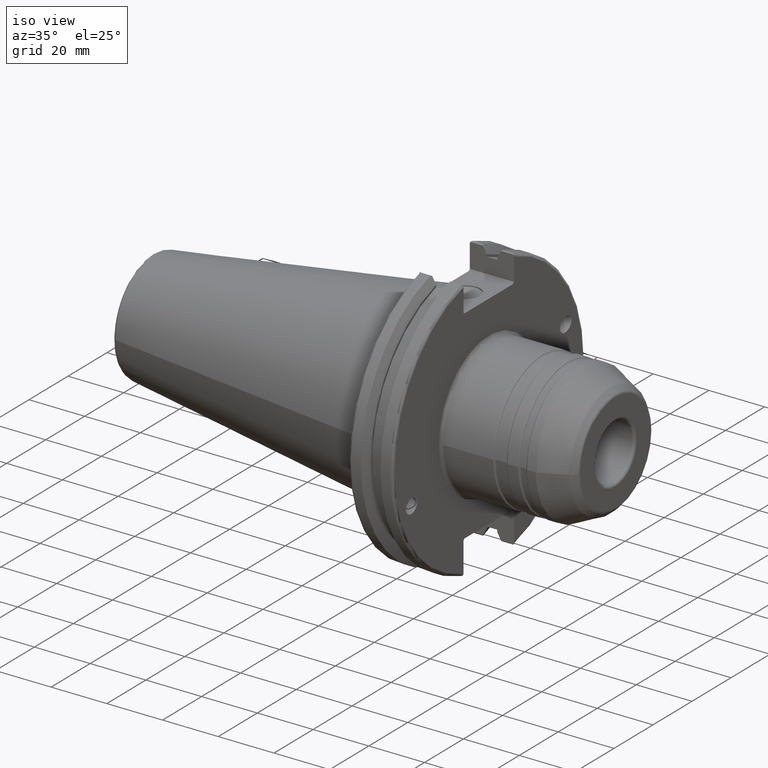
[diagram: clean part render]
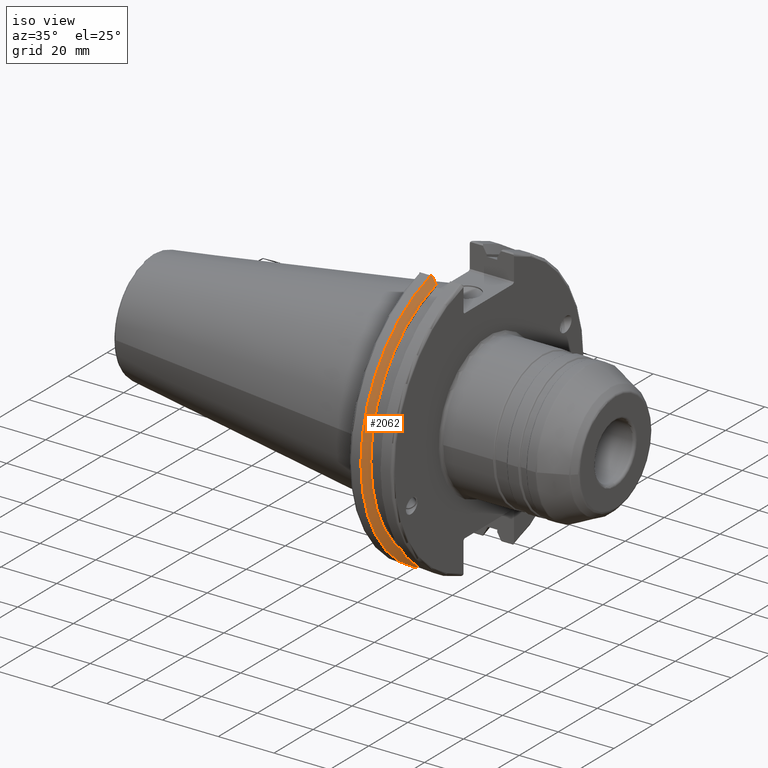
[diagram: same view with one face highlighted and labeled with its STEP entity id]
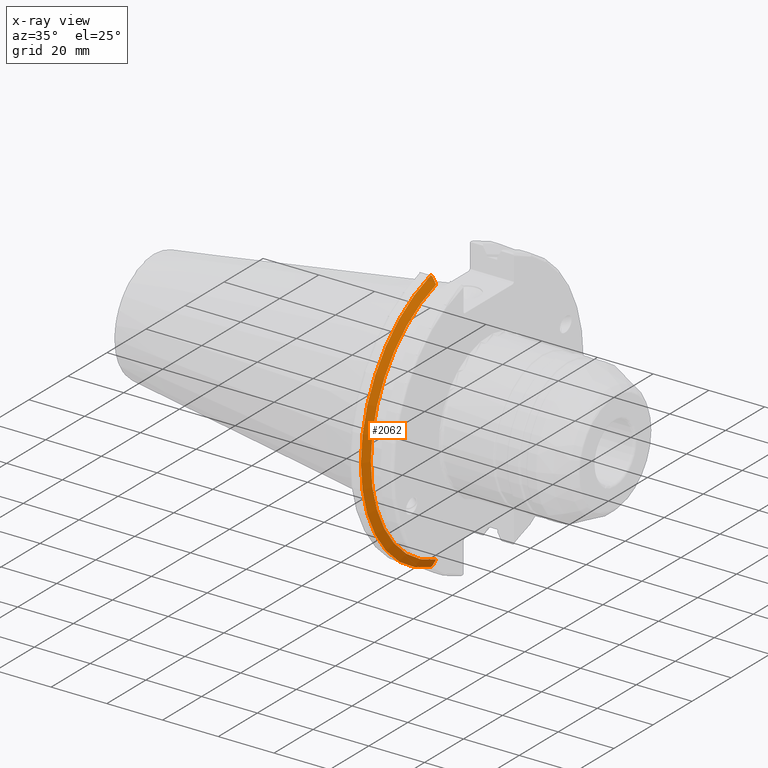
[diagram: x-ray of the same camera — body ghosted, the highlighted face saturated]
A machine part, iso view. The second image highlights one B-rep face of the part: STEP entity #2062.
The next image is the same camera in x-ray: the body ghosted, the highlighted face saturated — about 0% of this face is hidden behind the body in this view.
In plain terms, the highlighted conical surface has half-angle 60 deg.
Its self-contained STEP definition (entity closure, byte-faithful):
#18=(
BOUNDED_CURVE()
B_SPLINE_CURVE(2,(#3693,#3694,#3695),.UNSPECIFIED.,.F.,.F.)
B_SPLINE_CURVE_WITH_KNOTS((3,3),(0.,0.275823910674601),.UNSPECIFIED.)
CURVE()
GEOMETRIC_REPRESENTATION_ITEM()
RATIONAL_B_SPLINE_CURVE((1.,1.00038235573593,1.00012873636487))
REPRESENTATION_ITEM('')
);
#21=(
BOUNDED_CURVE()
B_SPLINE_CURVE(2,(#3721,#3722,#3723),.UNSPECIFIED.,.F.,.F.)
B_SPLINE_CURVE_WITH_KNOTS((3,3),(0.0558332664507492,0.331657177124507),
 .UNSPECIFIED.)
CURVE()
GEOMETRIC_REPRESENTATION_ITEM()
RATIONAL_B_SPLINE_CURVE((1.00012873636807,1.00038235574544,1.))
REPRESENTATION_ITEM('')
);
#22=(
BOUNDED_CURVE()
B_SPLINE_CURVE(2,(#3756,#3757,#3758),.UNSPECIFIED.,.F.,.F.)
B_SPLINE_CURVE_WITH_KNOTS((3,3),(0.,0.0648240472897372),.UNSPECIFIED.)
CURVE()
GEOMETRIC_REPRESENTATION_ITEM()
RATIONAL_B_SPLINE_CURVE((1.,1.00011477674836,1.00019140645948))
REPRESENTATION_ITEM('')
);
#23=(
BOUNDED_CURVE()
B_SPLINE_CURVE(2,(#3764,#3765,#3766),.UNSPECIFIED.,.F.,.F.)
B_SPLINE_CURVE_WITH_KNOTS((3,3),(0.325260944932348,0.390084992222201),
 .UNSPECIFIED.)
CURVE()
GEOMETRIC_REPRESENTATION_ITEM()
RATIONAL_B_SPLINE_CURVE((1.00019140645916,1.00011477674817,1.))
REPRESENTATION_ITEM('')
);
#68=CONICAL_SURFACE('',#2369,47.8172386482472,1.0471975511966);
#458=FACE_OUTER_BOUND('',#576,.T.);
#576=EDGE_LOOP('',(#1923,#1924,#1925,#1926,#1927,#1928));
#720=CIRCLE('',#2311,49.2125);
#747=CIRCLE('',#2370,46.4219772964944);
#932=VERTEX_POINT('',#3690);
#933=VERTEX_POINT('',#3692);
#942=VERTEX_POINT('',#3718);
#943=VERTEX_POINT('',#3720);
#947=VERTEX_POINT('',#3754);
#948=VERTEX_POINT('',#3760);
#1219=EDGE_CURVE('',#933,#932,#18,.T.);
#1230=EDGE_CURVE('',#943,#942,#21,.T.);
#1238=EDGE_CURVE('',#947,#932,#22,.T.);
#1240=EDGE_CURVE('',#947,#948,#720,.T.);
#1241=EDGE_CURVE('',#943,#948,#23,.T.);
#1299=EDGE_CURVE('',#933,#942,#747,.T.);
#1923=ORIENTED_EDGE('',*,*,#1241,.F.);
#1924=ORIENTED_EDGE('',*,*,#1230,.T.);
#1925=ORIENTED_EDGE('',*,*,#1299,.F.);
#1926=ORIENTED_EDGE('',*,*,#1219,.T.);
#1927=ORIENTED_EDGE('',*,*,#1238,.F.);
#1928=ORIENTED_EDGE('',*,*,#1240,.T.);
#2062=ADVANCED_FACE('',(#458),#68,.T.);
#2311=AXIS2_PLACEMENT_3D('',#3762,#2903,#2904);
#2369=AXIS2_PLACEMENT_3D('',#3919,#3040,#3041);
#2370=AXIS2_PLACEMENT_3D('',#3920,#3042,#3043);
#2903=DIRECTION('center_axis',(1.,0.,0.));
#2904=DIRECTION('ref_axis',(0.,0.,-1.));
#3040=DIRECTION('center_axis',(-1.,0.,0.));
#3041=DIRECTION('ref_axis',(0.,-1.,-1.22464679914735E-16));
#3042=DIRECTION('center_axis',(1.,0.,0.));
#3043=DIRECTION('ref_axis',(0.,0.,-1.));
#3690=CARTESIAN_POINT('',(7.88638960562424,-12.95,46.9780755322918));
#3692=CARTESIAN_POINT('',(9.2191,-12.95,44.5791147973604));
#3693=CARTESIAN_POINT('Ctrl Pts',(9.2191,-12.95,44.5791147973604));
#3694=CARTESIAN_POINT('Ctrl Pts',(8.57020449055857,-12.95,45.7494966802148));
#3695=CARTESIAN_POINT('Ctrl Pts',(7.88638960562424,-12.95,46.9780755322918));
#3718=CARTESIAN_POINT('',(9.2191,-12.95,-44.5791147973604));
#3720=CARTESIAN_POINT('',(7.88638960562425,-12.95,-46.9780755322918));
#3721=CARTESIAN_POINT('Ctrl Pts',(7.88638960562425,-12.95,-46.9780755322918));
#3722=CARTESIAN_POINT('Ctrl Pts',(8.57020449054166,-12.95,-45.7494966802452));
#3723=CARTESIAN_POINT('Ctrl Pts',(9.2191,-12.95,-44.5791147973604));
#3754=CARTESIAN_POINT('',(7.60799096595127,-13.4317035994433,47.3440544806494));
#3756=CARTESIAN_POINT('Ctrl Pts',(7.60799096595126,-13.4317035994433,47.3440544806494));
#3757=CARTESIAN_POINT('Ctrl Pts',(7.7482689666382,-13.1896660169966,47.1601640966265));
#3758=CARTESIAN_POINT('Ctrl Pts',(7.88638960562424,-12.95,46.9780755322918));
#3760=CARTESIAN_POINT('',(7.60799096595127,-13.4317035994433,-47.3440544806494));
#3762=CARTESIAN_POINT('Origin',(7.60799096595127,0.,0.));
#3764=CARTESIAN_POINT('Ctrl Pts',(7.88638960562425,-12.95,-46.9780755322918));
#3765=CARTESIAN_POINT('Ctrl Pts',(7.74826896663813,-13.1896660169967,-47.1601640966265));
#3766=CARTESIAN_POINT('Ctrl Pts',(7.60799096595127,-13.4317035994434,-47.3440544806494));
#3919=CARTESIAN_POINT('Origin',(8.41354548297563,0.,0.));
#3920=CARTESIAN_POINT('Origin',(9.2191,0.,0.));